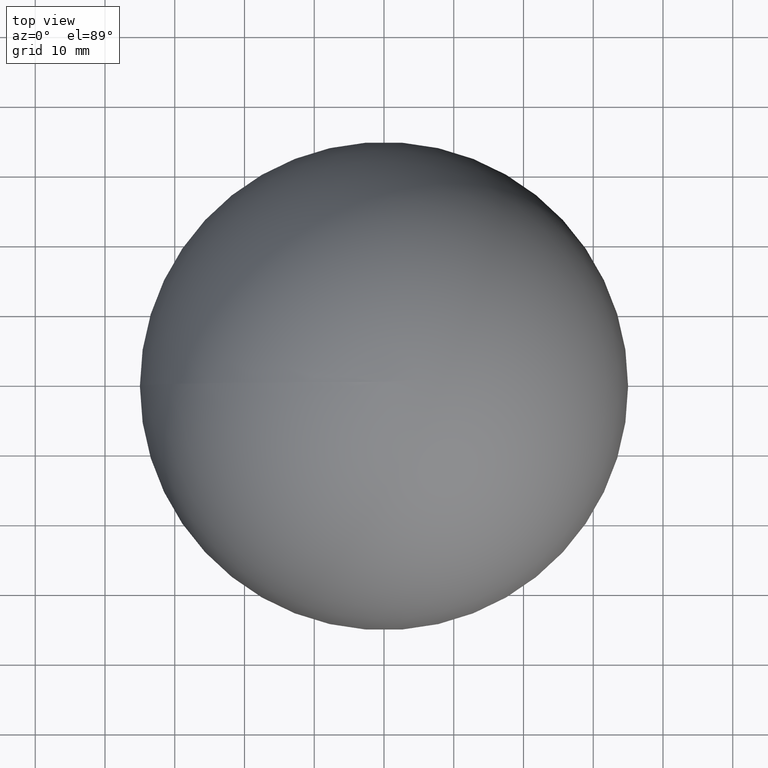
[diagram: clean part render]
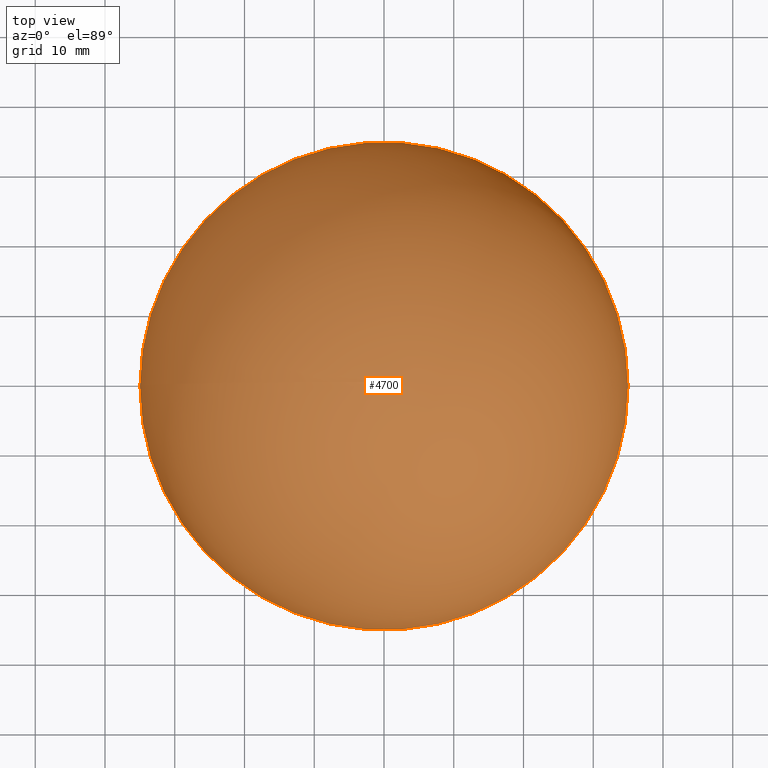
[diagram: same view with one face highlighted and labeled with its STEP entity id]
A machine part, top view. The second image highlights one B-rep face of the part: STEP entity #4700.
In plain terms, the highlighted spherical surface has radius 35 mm.
Its self-contained STEP definition (entity closure, byte-faithful):
#103 = DIRECTION ( 'NONE',  ( 6.982962677686266711E-15, 0.000000000000000000, -1.000000000000000000 ) ) ;
#604 = FACE_OUTER_BOUND ( 'NONE', #6902, .T. ) ;
#1628 = VERTEX_POINT ( 'NONE', #5720 ) ;
#1970 = CARTESIAN_POINT ( 'NONE',  ( -35.00000000000000000, 0.000000000000000000, -2.444036937190193601E-13 ) ) ;
#2015 = DIRECTION ( 'NONE',  ( -1.000000000000000000, 0.000000000000000000, -6.982962677686267499E-15 ) ) ;
#2253 = CIRCLE ( 'NONE', #7513, 35.00000000000000000 ) ;
#2331 = DIRECTION ( 'NONE',  ( -1.000000000000000000, 0.000000000000000000, -6.982962677686267499E-15 ) ) ;
#3297 = ORIENTED_EDGE ( 'NONE', *, *, #10068, .F. ) ;
#3446 = DIRECTION ( 'NONE',  ( -1.000000000000000000, 0.000000000000000000, -6.982962677686267499E-15 ) ) ;
#3638 = EDGE_CURVE ( 'NONE', #1628, #8319, #2253, .T. ) ;
#4700 = ADVANCED_FACE ( 'NONE', ( #604 ), #8031, .T. ) ;
#4721 = CARTESIAN_POINT ( 'NONE',  ( 0.000000000000000000, 0.000000000000000000, 0.000000000000000000 ) ) ;
#5042 = CARTESIAN_POINT ( 'NONE',  ( 0.000000000000000000, 0.000000000000000000, 0.000000000000000000 ) ) ;
#5552 = DIRECTION ( 'NONE',  ( -6.982962677686267499E-15, 0.000000000000000000, 1.000000000000000000 ) ) ;
#5720 = CARTESIAN_POINT ( 'NONE',  ( 35.00000000000000000, 4.286263797015736496E-15, 2.444036937190193601E-13 ) ) ;
#6414 = AXIS2_PLACEMENT_3D ( 'NONE', #5042, #103, #2015 ) ;
#6721 = DIRECTION ( 'NONE',  ( 6.982962677686266711E-15, 0.000000000000000000, -1.000000000000000000 ) ) ;
#6902 = EDGE_LOOP ( 'NONE', ( #3297, #7466 ) ) ;
#6947 = CIRCLE ( 'NONE', #6414, 35.00000000000000000 ) ;
#7466 = ORIENTED_EDGE ( 'NONE', *, *, #3638, .F. ) ;
#7513 = AXIS2_PLACEMENT_3D ( 'NONE', #8340, #6721, #3446 ) ;
#8031 = SPHERICAL_SURFACE ( 'NONE', #8944, 35.00000000000000000 ) ;
#8319 = VERTEX_POINT ( 'NONE', #1970 ) ;
#8340 = CARTESIAN_POINT ( 'NONE',  ( 0.000000000000000000, 0.000000000000000000, 0.000000000000000000 ) ) ;
#8944 = AXIS2_PLACEMENT_3D ( 'NONE', #4721, #5552, #2331 ) ;
#10068 = EDGE_CURVE ( 'NONE', #8319, #1628, #6947, .T. ) ;